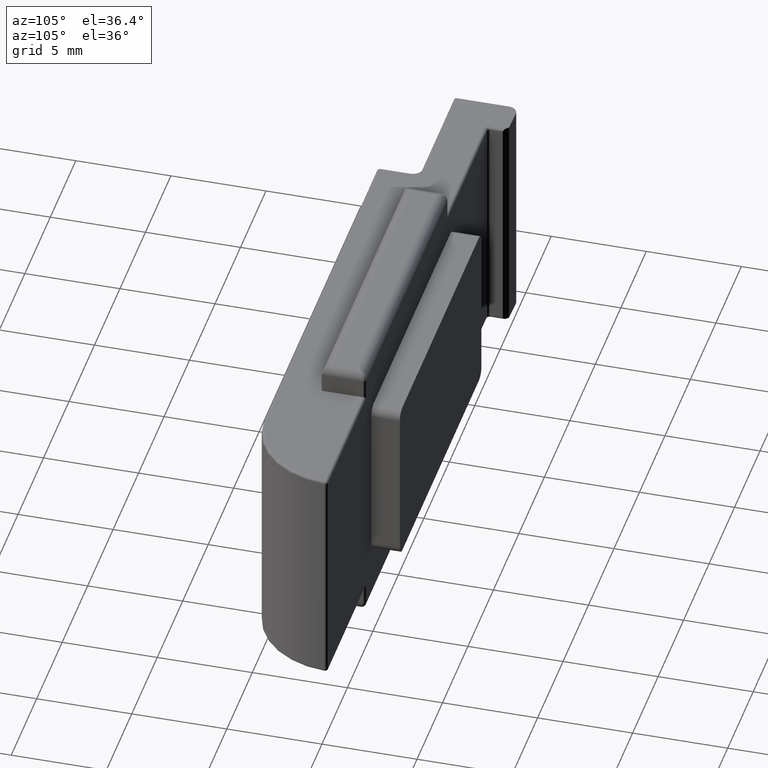
[diagram: clean part render]
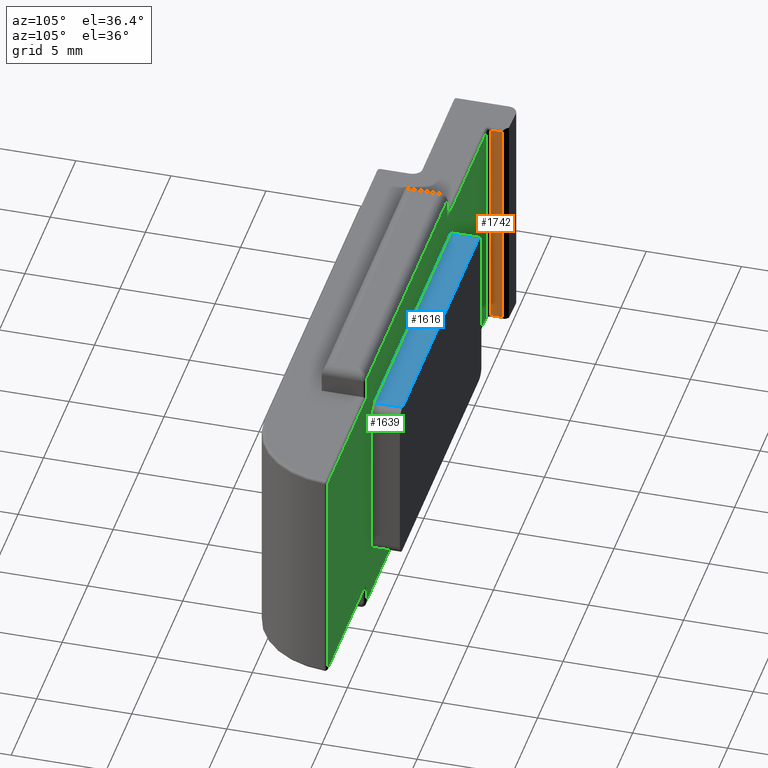
[diagram: same view with three faces highlighted in distinct colors, each labeled with its STEP entity id]
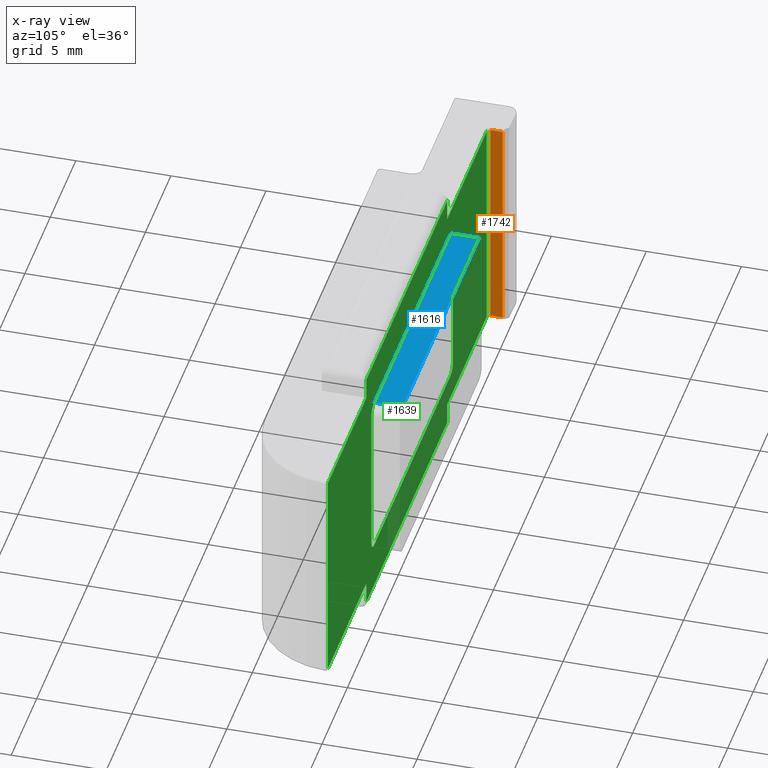
[diagram: x-ray of the same camera — body ghosted, the three highlighted faces saturated]
A machine part, auxiliary view with three faces highlighted in distinct colors.
The next image is the same camera in x-ray (body ghosted, the three faces saturated) — at least one of them is partly hidden behind the body in this view.
Their STEP definitions:

[orange] entity #1742 — the highlighted planar face has unit normal (-1, 0, 0).
#71 = ORIENTED_EDGE ( 'NONE', *, *, #713, .T. ) ;
#98 = CARTESIAN_POINT ( 'NONE',  ( -4.759999999999998899, -0.4500000000000008438, 11.84999999999999964 ) ) ;
#106 = EDGE_LOOP ( 'NONE', ( #71, #453, #1435, #1029 ) ) ;
#228 = LINE ( 'NONE', #1563, #1935 ) ;
#282 = PLANE ( 'NONE',  #654 ) ;
#315 = EDGE_CURVE ( 'NONE', #917, #366, #228, .T. ) ;
#366 = VERTEX_POINT ( 'NONE', #1400 ) ;
#384 = DIRECTION ( 'NONE',  ( 0.000000000000000000, 0.000000000000000000, 1.000000000000000000 ) ) ;
#453 = ORIENTED_EDGE ( 'NONE', *, *, #315, .T. ) ;
#553 = VERTEX_POINT ( 'NONE', #1428 ) ;
#654 = AXIS2_PLACEMENT_3D ( 'NONE', #1479, #1663, #1637 ) ;
#713 = EDGE_CURVE ( 'NONE', #553, #917, #1741, .T. ) ;
#746 = EDGE_CURVE ( 'NONE', #366, #2204, #1140, .T. ) ;
#794 = CARTESIAN_POINT ( 'NONE',  ( -4.759999999999998899, 0.4499999999999994560, 0.1500000000000008271 ) ) ;
#824 = EDGE_CURVE ( 'NONE', #2204, #553, #1404, .T. ) ;
#832 = CARTESIAN_POINT ( 'NONE',  ( -4.759999999999998899, -0.4500000000000008438, 0.000000000000000000 ) ) ;
#917 = VERTEX_POINT ( 'NONE', #1859 ) ;
#1029 = ORIENTED_EDGE ( 'NONE', *, *, #824, .T. ) ;
#1140 = LINE ( 'NONE', #1309, #1452 ) ;
#1309 = CARTESIAN_POINT ( 'NONE',  ( -4.759999999999998899, 0.4499999999999994560, 11.84999999999999964 ) ) ;
#1400 = CARTESIAN_POINT ( 'NONE',  ( -4.759999999999998899, 0.1999999999999893530, 11.84999999999999964 ) ) ;
#1404 = LINE ( 'NONE', #832, #1687 ) ;
#1428 = CARTESIAN_POINT ( 'NONE',  ( -4.759999999999998899, -0.4500000000000008438, 0.1500000000000008271 ) ) ;
#1435 = ORIENTED_EDGE ( 'NONE', *, *, #746, .T. ) ;
#1452 = VECTOR ( 'NONE', #1805, 1000.000000000000000 ) ;
#1479 = CARTESIAN_POINT ( 'NONE',  ( -4.759999999999998899, 0.4499999999999994560, 12.00000000000000000 ) ) ;
#1563 = CARTESIAN_POINT ( 'NONE',  ( -4.759999999999998899, 0.1999999999999892975, 12.00000000000000000 ) ) ;
#1628 = FACE_OUTER_BOUND ( 'NONE', #106, .T. ) ;
#1637 = DIRECTION ( 'NONE',  ( 0.000000000000000000, 0.000000000000000000, 1.000000000000000000 ) ) ;
#1645 = DIRECTION ( 'NONE',  ( 0.000000000000000000, 1.000000000000000000, 0.000000000000000000 ) ) ;
#1663 = DIRECTION ( 'NONE',  ( -1.000000000000000000, 0.000000000000000000, 0.000000000000000000 ) ) ;
#1683 = DIRECTION ( 'NONE',  ( 0.000000000000000000, 0.000000000000000000, -1.000000000000000000 ) ) ;
#1687 = VECTOR ( 'NONE', #1683, 1000.000000000000000 ) ;
#1741 = LINE ( 'NONE', #794, #2060 ) ;
#1742 = ADVANCED_FACE ( 'NONE', ( #1628 ), #282, .F. ) ;
#1805 = DIRECTION ( 'NONE',  ( -0.000000000000000000, -1.000000000000000000, -0.000000000000000000 ) ) ;
#1859 = CARTESIAN_POINT ( 'NONE',  ( -4.759999999999998899, 0.1999999999999892975, 0.1500000000000008271 ) ) ;
#1935 = VECTOR ( 'NONE', #384, 1000.000000000000000 ) ;
#2060 = VECTOR ( 'NONE', #1645, 1000.000000000000000 ) ;
#2204 = VERTEX_POINT ( 'NONE', #98 ) ;

[blue] entity #1616 — the highlighted planar face has unit normal (0, 0, -1).
#25 = PLANE ( 'NONE',  #318 ) ;
#110 = DIRECTION ( 'NONE',  ( -3.446287897283867127E-18, -1.000000000000000000, 0.000000000000000000 ) ) ;
#248 = DIRECTION ( 'NONE',  ( -1.000000000000000000, 0.000000000000000000, -0.000000000000000000 ) ) ;
#294 = ORIENTED_EDGE ( 'NONE', *, *, #389, .T. ) ;
#318 = AXIS2_PLACEMENT_3D ( 'NONE', #900, #1881, #248 ) ;
#389 = EDGE_CURVE ( 'NONE', #760, #2030, #634, .T. ) ;
#458 = CARTESIAN_POINT ( 'NONE',  ( 2.547413023856827330, 0.8999999999999992450, 10.50000000000000000 ) ) ;
#634 = LINE ( 'NONE', #916, #796 ) ;
#663 = VECTOR ( 'NONE', #1468, 1000.000000000000000 ) ;
#677 = EDGE_CURVE ( 'NONE', #1737, #2030, #1903, .T. ) ;
#760 = VERTEX_POINT ( 'NONE', #1638 ) ;
#764 = EDGE_CURVE ( 'NONE', #1737, #1129, #1009, .T. ) ;
#786 = CARTESIAN_POINT ( 'NONE',  ( 2.547413023856827330, 0.8999999999999992450, 10.50000000000000000 ) ) ;
#796 = VECTOR ( 'NONE', #1066, 1000.000000000000000 ) ;
#900 = CARTESIAN_POINT ( 'NONE',  ( 2.728295496445592516E-18, 0.8999999999999992450, 10.50000000000000000 ) ) ;
#916 = CARTESIAN_POINT ( 'NONE',  ( 17.54741302385682644, 0.8999999999999991340, 10.50000000000000000 ) ) ;
#962 = CARTESIAN_POINT ( 'NONE',  ( -2.441136349480208944E-18, -0.6000000000000008660, 10.50000000000000000 ) ) ;
#966 = EDGE_LOOP ( 'NONE', ( #1227, #294, #1463, #1654 ) ) ;
#976 = FACE_OUTER_BOUND ( 'NONE', #966, .T. ) ;
#982 = CARTESIAN_POINT ( 'NONE',  ( 2.728295496445592516E-18, 0.8999999999999992450, 10.50000000000000000 ) ) ;
#1009 = LINE ( 'NONE', #786, #1287 ) ;
#1066 = DIRECTION ( 'NONE',  ( 3.446287897283867127E-18, 1.000000000000000000, -0.000000000000000000 ) ) ;
#1123 = DIRECTION ( 'NONE',  ( 1.000000000000000000, -4.068560582467009130E-18, 0.000000000000000000 ) ) ;
#1129 = VERTEX_POINT ( 'NONE', #2127 ) ;
#1175 = EDGE_CURVE ( 'NONE', #1129, #760, #1736, .T. ) ;
#1227 = ORIENTED_EDGE ( 'NONE', *, *, #1175, .T. ) ;
#1285 = VECTOR ( 'NONE', #1123, 1000.000000000000000 ) ;
#1287 = VECTOR ( 'NONE', #110, 1000.000000000000000 ) ;
#1463 = ORIENTED_EDGE ( 'NONE', *, *, #677, .F. ) ;
#1468 = DIRECTION ( 'NONE',  ( 1.000000000000000000, -4.068560582467009130E-18, 0.000000000000000000 ) ) ;
#1616 = ADVANCED_FACE ( 'NONE', ( #976 ), #25, .F. ) ;
#1638 = CARTESIAN_POINT ( 'NONE',  ( 17.54741302385682644, -0.6000000000000009770, 10.50000000000000000 ) ) ;
#1654 = ORIENTED_EDGE ( 'NONE', *, *, #764, .T. ) ;
#1736 = LINE ( 'NONE', #962, #1285 ) ;
#1737 = VERTEX_POINT ( 'NONE', #458 ) ;
#1867 = CARTESIAN_POINT ( 'NONE',  ( 17.54741302385682644, 0.8999999999999991340, 10.50000000000000000 ) ) ;
#1881 = DIRECTION ( 'NONE',  ( 0.000000000000000000, 0.000000000000000000, -1.000000000000000000 ) ) ;
#1903 = LINE ( 'NONE', #982, #663 ) ;
#2030 = VERTEX_POINT ( 'NONE', #1867 ) ;
#2127 = CARTESIAN_POINT ( 'NONE',  ( 2.547413023856827330, -0.6000000000000008660, 10.50000000000000000 ) ) ;

[green] entity #1639 — the highlighted planar face has unit normal (-0, -1, 0).
#1 = ORIENTED_EDGE ( 'NONE', *, *, #1701, .T. ) ;
#8 = LINE ( 'NONE', #1578, #1289 ) ;
#20 = DIRECTION ( 'NONE',  ( 1.000000000000000000, -3.446287897283866742E-18, -0.000000000000000000 ) ) ;
#22 = VERTEX_POINT ( 'NONE', #901 ) ;
#32 = AXIS2_PLACEMENT_3D ( 'NONE', #1328, #312, #974 ) ;
#84 = CARTESIAN_POINT ( 'NONE',  ( 19.04999999999999716, -0.6000000000000009770, -1.000000000000000000 ) ) ;
#124 = AXIS2_PLACEMENT_3D ( 'NONE', #1739, #757, #1581 ) ;
#143 = CARTESIAN_POINT ( 'NONE',  ( 2.047413023856825998, -0.6000000000000008660, -2.959746197920916770E-16 ) ) ;
#161 = VERTEX_POINT ( 'NONE', #1984 ) ;
#172 = DIRECTION ( 'NONE',  ( 1.445602896647339903E-16, -5.881522963199497010E-34, 1.000000000000000000 ) ) ;
#174 = LINE ( 'NONE', #1934, #1142 ) ;
#177 = VERTEX_POINT ( 'NONE', #1778 ) ;
#182 = ORIENTED_EDGE ( 'NONE', *, *, #1983, .T. ) ;
#187 = CARTESIAN_POINT ( 'NONE',  ( -4.759999999999998899, -0.6000000000000008660, 0.1500000000000008271 ) ) ;
#210 = EDGE_CURVE ( 'NONE', #22, #295, #854, .T. ) ;
#231 = CARTESIAN_POINT ( 'NONE',  ( 19.04999999999999716, -0.6000000000000009770, -1.000000000000000000 ) ) ;
#239 = VERTEX_POINT ( 'NONE', #1159 ) ;
#249 = DIRECTION ( 'NONE',  ( -1.000000000000000000, 3.446287897283866742E-18, -0.000000000000000000 ) ) ;
#255 = LINE ( 'NONE', #492, #693 ) ;
#265 = CARTESIAN_POINT ( 'NONE',  ( -4.609999999999998543, -0.6000000000000008660, 12.00000000000000000 ) ) ;
#274 = ORIENTED_EDGE ( 'NONE', *, *, #1019, .T. ) ;
#276 = EDGE_CURVE ( 'NONE', #1888, #821, #1567, .T. ) ;
#295 = VERTEX_POINT ( 'NONE', #478 ) ;
#312 = DIRECTION ( 'NONE',  ( -3.446287897283866742E-18, -1.000000000000000000, 0.000000000000000000 ) ) ;
#314 = DIRECTION ( 'NONE',  ( 1.000000000000000000, -3.446287897283866742E-18, -0.000000000000000000 ) ) ;
#357 = LINE ( 'NONE', #1828, #773 ) ;
#376 = ORIENTED_EDGE ( 'NONE', *, *, #1341, .T. ) ;
#395 = CARTESIAN_POINT ( 'NONE',  ( 3.149999999999999911, -0.6000000000000008660, -1.000000000000000000 ) ) ;
#397 = LINE ( 'NONE', #187, #1685 ) ;
#410 = DIRECTION ( 'NONE',  ( -3.446287897283866742E-18, -1.000000000000000000, 0.000000000000000000 ) ) ;
#419 = DIRECTION ( 'NONE',  ( -1.000000000000000000, 3.446287897283866742E-18, 0.000000000000000000 ) ) ;
#426 = CARTESIAN_POINT ( 'NONE',  ( -4.759999999999998899, -0.6000000000000008660, 12.00000000000000000 ) ) ;
#463 = EDGE_CURVE ( 'NONE', #821, #650, #8, .T. ) ;
#469 = ORIENTED_EDGE ( 'NONE', *, *, #919, .T. ) ;
#476 = EDGE_CURVE ( 'NONE', #1885, #1676, #1824, .T. ) ;
#478 = CARTESIAN_POINT ( 'NONE',  ( 18.04741302385682644, -0.6000000000000009770, 2.000000000000001332 ) ) ;
#484 = CARTESIAN_POINT ( 'NONE',  ( 2.547413023856826442, -0.6000000000000008660, 1.500000000000004663 ) ) ;
#487 = FACE_OUTER_BOUND ( 'NONE', #1601, .T. ) ;
#492 = CARTESIAN_POINT ( 'NONE',  ( 3.149999999999999911, -0.6000000000000008660, 12.00000000000000000 ) ) ;
#503 = ORIENTED_EDGE ( 'NONE', *, *, #789, .T. ) ;
#505 = ORIENTED_EDGE ( 'NONE', *, *, #1175, .F. ) ;
#507 = AXIS2_PLACEMENT_3D ( 'NONE', #1793, #827, #1003 ) ;
#508 = FACE_BOUND ( 'NONE', #1818, .T. ) ;
#524 = DIRECTION ( 'NONE',  ( -0.000000000000000000, -0.000000000000000000, -1.000000000000000000 ) ) ;
#538 = AXIS2_PLACEMENT_3D ( 'NONE', #426, #410, #1784 ) ;
#574 = ORIENTED_EDGE ( 'NONE', *, *, #463, .T. ) ;
#577 = CARTESIAN_POINT ( 'NONE',  ( 3.149999999999999911, -0.6000000000000008660, 13.00000000000000000 ) ) ;
#587 = ORIENTED_EDGE ( 'NONE', *, *, #598, .T. ) ;
#598 = EDGE_CURVE ( 'NONE', #1076, #1048, #174, .T. ) ;
#599 = CIRCLE ( 'NONE', #1898, 0.5000000000000004441 ) ;
#612 = DIRECTION ( 'NONE',  ( -0.000000000000000000, -0.000000000000000000, -1.000000000000000000 ) ) ;
#632 = CARTESIAN_POINT ( 'NONE',  ( 19.19999999999999929, -0.6000000000000009770, 13.00000000000000000 ) ) ;
#650 = VERTEX_POINT ( 'NONE', #2153 ) ;
#680 = VERTEX_POINT ( 'NONE', #1156 ) ;
#693 = VECTOR ( 'NONE', #1216, 1000.000000000000000 ) ;
#752 = CARTESIAN_POINT ( 'NONE',  ( -4.759999999999998899, -0.6000000000000008660, 11.84999999999999964 ) ) ;
#757 = DIRECTION ( 'NONE',  ( -3.446287897283866742E-18, -1.000000000000000000, 0.000000000000000000 ) ) ;
#760 = VERTEX_POINT ( 'NONE', #1638 ) ;
#773 = VECTOR ( 'NONE', #2013, 1000.000000000000000 ) ;
#774 = CIRCLE ( 'NONE', #507, 0.5000000000000004441 ) ;
#789 = EDGE_CURVE ( 'NONE', #239, #295, #774, .T. ) ;
#800 = DIRECTION ( 'NONE',  ( -0.000000000000000000, -0.000000000000000000, 1.000000000000000000 ) ) ;
#814 = VERTEX_POINT ( 'NONE', #484 ) ;
#821 = VERTEX_POINT ( 'NONE', #2174 ) ;
#827 = DIRECTION ( 'NONE',  ( -3.446287897283866742E-18, -1.000000000000000000, 0.000000000000000000 ) ) ;
#829 = DIRECTION ( 'NONE',  ( 1.000000000000000000, -3.446287897283866742E-18, -0.000000000000000000 ) ) ;
#854 = LINE ( 'NONE', #2012, #2112 ) ;
#859 = VERTEX_POINT ( 'NONE', #1339 ) ;
#868 = DIRECTION ( 'NONE',  ( 0.000000000000000000, 0.000000000000000000, -1.000000000000000000 ) ) ;
#872 = ORIENTED_EDGE ( 'NONE', *, *, #476, .T. ) ;
#901 = CARTESIAN_POINT ( 'NONE',  ( 18.04741302385682644, -0.6000000000000009770, 10.00000000000000000 ) ) ;
#910 = LINE ( 'NONE', #1390, #1190 ) ;
#919 = EDGE_CURVE ( 'NONE', #1676, #1208, #255, .T. ) ;
#923 = VECTOR ( 'NONE', #612, 1000.000000000000000 ) ;
#925 = VECTOR ( 'NONE', #172, 1000.000000000000000 ) ;
#946 = EDGE_CURVE ( 'NONE', #239, #814, #910, .T. ) ;
#962 = CARTESIAN_POINT ( 'NONE',  ( -2.441136349480208944E-18, -0.6000000000000008660, 10.50000000000000000 ) ) ;
#974 = DIRECTION ( 'NONE',  ( 1.000000000000000000, 0.000000000000000000, 0.000000000000000000 ) ) ;
#975 = CARTESIAN_POINT ( 'NONE',  ( -4.759999999999998899, -0.6000000000000008660, 11.84999999999999964 ) ) ;
#1003 = DIRECTION ( 'NONE',  ( 1.000000000000000000, 0.000000000000000000, 0.000000000000000000 ) ) ;
#1019 = EDGE_CURVE ( 'NONE', #1129, #859, #2192, .T. ) ;
#1022 = VERTEX_POINT ( 'NONE', #1708 ) ;
#1048 = VERTEX_POINT ( 'NONE', #395 ) ;
#1060 = VECTOR ( 'NONE', #868, 1000.000000000000000 ) ;
#1076 = VERTEX_POINT ( 'NONE', #231 ) ;
#1105 = PLANE ( 'NONE',  #538 ) ;
#1111 = LINE ( 'NONE', #632, #2108 ) ;
#1123 = DIRECTION ( 'NONE',  ( 1.000000000000000000, -4.068560582467009130E-18, 0.000000000000000000 ) ) ;
#1129 = VERTEX_POINT ( 'NONE', #2127 ) ;
#1142 = VECTOR ( 'NONE', #249, 1000.000000000000000 ) ;
#1155 = ORIENTED_EDGE ( 'NONE', *, *, #1970, .F. ) ;
#1156 = CARTESIAN_POINT ( 'NONE',  ( -4.609999999999998543, -0.6000000000000008660, 0.1500000000000008271 ) ) ;
#1159 = CARTESIAN_POINT ( 'NONE',  ( 17.54741302385682644, -0.6000000000000009770, 1.500000000000001332 ) ) ;
#1160 = VECTOR ( 'NONE', #800, 1000.000000000000000 ) ;
#1175 = EDGE_CURVE ( 'NONE', #1129, #760, #1736, .T. ) ;
#1177 = CARTESIAN_POINT ( 'NONE',  ( -4.609999999999998543, -0.6000000000000008660, 11.84999999999999964 ) ) ;
#1190 = VECTOR ( 'NONE', #1535, 1000.000000000000000 ) ;
#1202 = CARTESIAN_POINT ( 'NONE',  ( 17.54741302385682644, -0.6000000000000009770, 10.00000000000000000 ) ) ;
#1208 = VERTEX_POINT ( 'NONE', #577 ) ;
#1216 = DIRECTION ( 'NONE',  ( -0.000000000000000000, -0.000000000000000000, 1.000000000000000000 ) ) ;
#1222 = ORIENTED_EDGE ( 'NONE', *, *, #2199, .T. ) ;
#1233 = CIRCLE ( 'NONE', #32, 0.5000000000000000000 ) ;
#1256 = ORIENTED_EDGE ( 'NONE', *, *, #1584, .T. ) ;
#1285 = VECTOR ( 'NONE', #1123, 1000.000000000000000 ) ;
#1289 = VECTOR ( 'NONE', #524, 1000.000000000000000 ) ;
#1301 = ORIENTED_EDGE ( 'NONE', *, *, #1690, .T. ) ;
#1324 = EDGE_CURVE ( 'NONE', #1208, #1829, #1111, .T. ) ;
#1328 = CARTESIAN_POINT ( 'NONE',  ( 2.547413023856826442, -0.6000000000000008660, 2.000000000000004885 ) ) ;
#1339 = CARTESIAN_POINT ( 'NONE',  ( 2.047413023856827330, -0.6000000000000008660, 10.00000000000000000 ) ) ;
#1341 = EDGE_CURVE ( 'NONE', #1048, #1022, #357, .T. ) ;
#1344 = ORIENTED_EDGE ( 'NONE', *, *, #210, .F. ) ;
#1386 = DIRECTION ( 'NONE',  ( -1.000000000000000000, 3.446287897283866742E-18, 0.000000000000000000 ) ) ;
#1390 = CARTESIAN_POINT ( 'NONE',  ( 3.228195153961722834E-16, -0.6000000000000008660, 1.500000000000005329 ) ) ;
#1535 = DIRECTION ( 'NONE',  ( -1.000000000000000000, 4.068560582467009130E-18, 2.168404344971008868E-16 ) ) ;
#1545 = ORIENTED_EDGE ( 'NONE', *, *, #1324, .T. ) ;
#1551 = ORIENTED_EDGE ( 'NONE', *, *, #1832, .T. ) ;
#1567 = LINE ( 'NONE', #975, #1826 ) ;
#1578 = CARTESIAN_POINT ( 'NONE',  ( 26.54741302385682999, -0.6000000000000009770, 0.000000000000000000 ) ) ;
#1581 = DIRECTION ( 'NONE',  ( 1.000000000000000000, 0.000000000000000000, 0.000000000000000000 ) ) ;
#1584 = EDGE_CURVE ( 'NONE', #1022, #680, #397, .T. ) ;
#1595 = ORIENTED_EDGE ( 'NONE', *, *, #276, .T. ) ;
#1601 = EDGE_LOOP ( 'NONE', ( #872, #469, #1545, #182, #1595, #574, #1301, #1, #587, #376, #1256, #1222 ) ) ;
#1638 = CARTESIAN_POINT ( 'NONE',  ( 17.54741302385682644, -0.6000000000000009770, 10.50000000000000000 ) ) ;
#1639 = ADVANCED_FACE ( 'NONE', ( #487, #508 ), #1105, .F. ) ;
#1652 = CARTESIAN_POINT ( 'NONE',  ( 19.04999999999999716, -0.6000000000000009770, 13.00000000000000000 ) ) ;
#1656 = DIRECTION ( 'NONE',  ( 0.000000000000000000, 0.000000000000000000, -1.000000000000000000 ) ) ;
#1676 = VERTEX_POINT ( 'NONE', #1981 ) ;
#1685 = VECTOR ( 'NONE', #1386, 1000.000000000000000 ) ;
#1690 = EDGE_CURVE ( 'NONE', #650, #177, #2188, .T. ) ;
#1701 = EDGE_CURVE ( 'NONE', #177, #1076, #1899, .T. ) ;
#1708 = CARTESIAN_POINT ( 'NONE',  ( 3.149999999999999911, -0.6000000000000008660, 0.1500000000000008271 ) ) ;
#1722 = DIRECTION ( 'NONE',  ( 1.000000000000000000, 0.000000000000000000, 0.000000000000000000 ) ) ;
#1736 = LINE ( 'NONE', #962, #1285 ) ;
#1739 = CARTESIAN_POINT ( 'NONE',  ( 2.547413023856827330, -0.6000000000000008660, 10.00000000000000000 ) ) ;
#1770 = CARTESIAN_POINT ( 'NONE',  ( 19.19999999999999574, -0.6000000000000009770, 0.1500000000000008271 ) ) ;
#1778 = CARTESIAN_POINT ( 'NONE',  ( 19.04999999999999716, -0.6000000000000009770, 0.1500000000000008271 ) ) ;
#1784 = DIRECTION ( 'NONE',  ( 1.000000000000000000, -3.446287897283866742E-18, 0.000000000000000000 ) ) ;
#1793 = CARTESIAN_POINT ( 'NONE',  ( 17.54741302385682644, -0.6000000000000009770, 2.000000000000001332 ) ) ;
#1818 = EDGE_LOOP ( 'NONE', ( #1155, #1551, #1882, #503, #1344, #2048, #505, #274 ) ) ;
#1824 = LINE ( 'NONE', #752, #1878 ) ;
#1826 = VECTOR ( 'NONE', #314, 1000.000000000000000 ) ;
#1828 = CARTESIAN_POINT ( 'NONE',  ( 3.149999999999999911, -0.6000000000000008660, 12.00000000000000000 ) ) ;
#1829 = VERTEX_POINT ( 'NONE', #1652 ) ;
#1832 = EDGE_CURVE ( 'NONE', #161, #814, #1233, .T. ) ;
#1878 = VECTOR ( 'NONE', #20, 1000.000000000000000 ) ;
#1882 = ORIENTED_EDGE ( 'NONE', *, *, #946, .F. ) ;
#1885 = VERTEX_POINT ( 'NONE', #1177 ) ;
#1888 = VERTEX_POINT ( 'NONE', #2028 ) ;
#1898 = AXIS2_PLACEMENT_3D ( 'NONE', #1202, #1914, #1722 ) ;
#1899 = LINE ( 'NONE', #84, #923 ) ;
#1914 = DIRECTION ( 'NONE',  ( -3.446287897283866742E-18, -1.000000000000000000, 0.000000000000000000 ) ) ;
#1930 = LINE ( 'NONE', #2038, #1060 ) ;
#1934 = CARTESIAN_POINT ( 'NONE',  ( 3.000000000000000000, -0.6000000000000008660, -1.000000000000000000 ) ) ;
#1970 = EDGE_CURVE ( 'NONE', #161, #859, #2016, .T. ) ;
#1981 = CARTESIAN_POINT ( 'NONE',  ( 3.149999999999999467, -0.6000000000000008660, 11.84999999999999964 ) ) ;
#1983 = EDGE_CURVE ( 'NONE', #1829, #1888, #1930, .T. ) ;
#1984 = CARTESIAN_POINT ( 'NONE',  ( 2.047413023856826442, -0.6000000000000008660, 2.000000000000004885 ) ) ;
#2012 = CARTESIAN_POINT ( 'NONE',  ( 18.04741302385682644, -0.6000000000000009770, 0.000000000000000000 ) ) ;
#2013 = DIRECTION ( 'NONE',  ( 0.000000000000000000, 0.000000000000000000, 1.000000000000000000 ) ) ;
#2016 = LINE ( 'NONE', #143, #925 ) ;
#2028 = CARTESIAN_POINT ( 'NONE',  ( 19.04999999999999716, -0.6000000000000009770, 11.84999999999999964 ) ) ;
#2038 = CARTESIAN_POINT ( 'NONE',  ( 19.04999999999999716, -0.6000000000000009770, 12.00000000000000000 ) ) ;
#2048 = ORIENTED_EDGE ( 'NONE', *, *, #2061, .T. ) ;
#2061 = EDGE_CURVE ( 'NONE', #22, #760, #599, .T. ) ;
#2103 = VECTOR ( 'NONE', #419, 1000.000000000000000 ) ;
#2108 = VECTOR ( 'NONE', #829, 1000.000000000000000 ) ;
#2112 = VECTOR ( 'NONE', #1656, 1000.000000000000000 ) ;
#2127 = CARTESIAN_POINT ( 'NONE',  ( 2.547413023856827330, -0.6000000000000008660, 10.50000000000000000 ) ) ;
#2153 = CARTESIAN_POINT ( 'NONE',  ( 26.54741302385682999, -0.6000000000000009770, 0.1500000000000008271 ) ) ;
#2163 = LINE ( 'NONE', #265, #1160 ) ;
#2174 = CARTESIAN_POINT ( 'NONE',  ( 26.54741302385682999, -0.6000000000000009770, 11.84999999999999964 ) ) ;
#2188 = LINE ( 'NONE', #1770, #2103 ) ;
#2192 = CIRCLE ( 'NONE', #124, 0.5000000000000000000 ) ;
#2199 = EDGE_CURVE ( 'NONE', #680, #1885, #2163, .T. ) ;